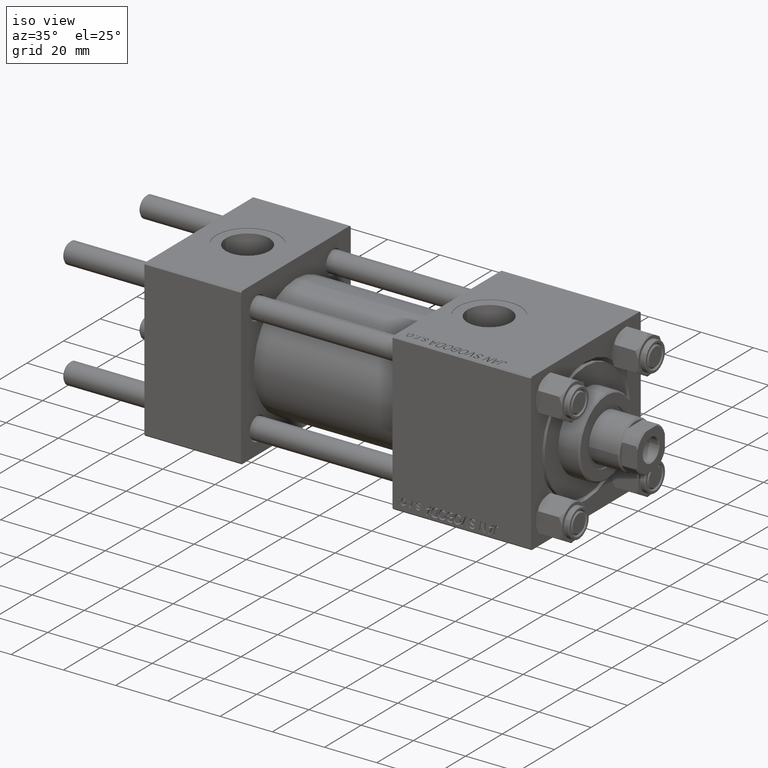
[diagram: clean part render]
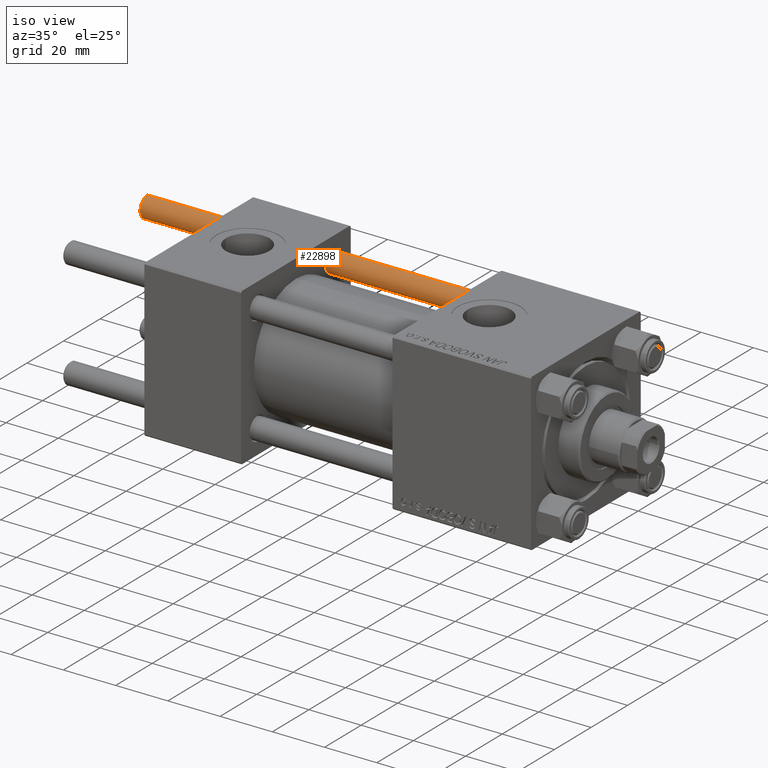
[diagram: same view with one face highlighted and labeled with its STEP entity id]
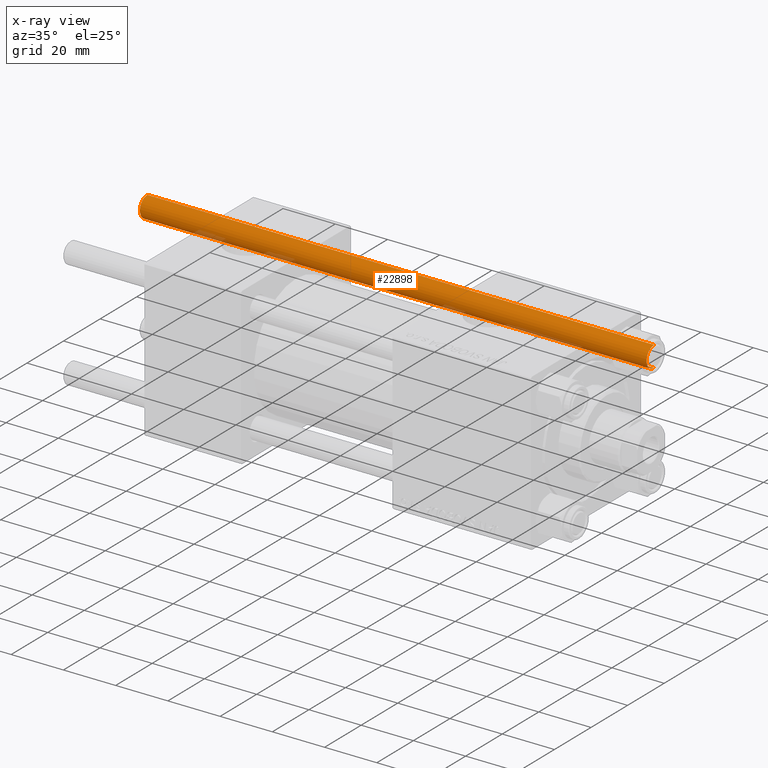
[diagram: x-ray of the same camera — body ghosted, the highlighted face saturated]
A machine part, iso view. The second image highlights one B-rep face of the part: STEP entity #22898.
The next image is the same camera in x-ray: the body ghosted, the highlighted face saturated — about 4% of this face is hidden behind the body in this view.
In plain terms, the highlighted cylindrical surface (edge-blend (fillet) strip) has radius 4 mm, axis along (-1, -0, -0).
Its self-contained STEP definition (entity closure, byte-faithful):
#341 = DIRECTION ( 'NONE',  ( -0.000000000000000000, -0.000000000000000000, -1.000000000000000000 ) ) ;
#4247 = DIRECTION ( 'NONE',  ( -0.000000000000000000, -0.000000000000000000, -1.000000000000000000 ) ) ;
#5375 = EDGE_CURVE ( 'NONE', #18319, #50360, #31281, .T. ) ;
#5916 = CARTESIAN_POINT ( 'NONE',  ( 0.000000000000000000, 0.000000000000000000, 194.5000000000000568 ) ) ;
#6033 = EDGE_CURVE ( 'NONE', #45623, #50360, #27580, .T. ) ;
#8055 = CARTESIAN_POINT ( 'NONE',  ( -4.000000000000000000, 0.000000000000000000, 194.5000000000000568 ) ) ;
#8470 = EDGE_CURVE ( 'NONE', #21928, #45623, #10314, .T. ) ;
#10314 = LINE ( 'NONE', #20855, #32447 ) ;
#11107 = VECTOR ( 'NONE', #4247, 1000.000000000000000 ) ;
#16541 = CARTESIAN_POINT ( 'NONE',  ( 0.000000000000000000, 0.000000000000000000, 195.0000000000000000 ) ) ;
#16791 = CYLINDRICAL_SURFACE ( 'NONE', #29100, 4.000000000000000000 ) ;
#18319 = VERTEX_POINT ( 'NONE', #23129 ) ;
#19716 = ORIENTED_EDGE ( 'NONE', *, *, #8470, .T. ) ;
#20855 = CARTESIAN_POINT ( 'NONE',  ( -4.000000000000000000, 0.000000000000000000, 195.0000000000000000 ) ) ;
#21928 = VERTEX_POINT ( 'NONE', #8055 ) ;
#22898 = ADVANCED_FACE ( 'NONE', ( #47917 ), #16791, .T. ) ;
#23129 = CARTESIAN_POINT ( 'NONE',  ( 4.000000000000000000, 4.898587196589412829E-16, 194.5000000000000568 ) ) ;
#23970 = CARTESIAN_POINT ( 'NONE',  ( 4.000000000000000000, 4.898587196589412829E-16, 0.5000000000000004441 ) ) ;
#25261 = EDGE_LOOP ( 'NONE', ( #25954, #31246, #19716, #32639 ) ) ;
#25954 = ORIENTED_EDGE ( 'NONE', *, *, #5375, .F. ) ;
#27580 = CIRCLE ( 'NONE', #31687, 4.000000000000000000 ) ;
#29100 = AXIS2_PLACEMENT_3D ( 'NONE', #16541, #341, #36335 ) ;
#31246 = ORIENTED_EDGE ( 'NONE', *, *, #44201, .T. ) ;
#31281 = LINE ( 'NONE', #46955, #11107 ) ;
#31687 = AXIS2_PLACEMENT_3D ( 'NONE', #33083, #48774, #33601 ) ;
#32447 = VECTOR ( 'NONE', #44766, 1000.000000000000000 ) ;
#32639 = ORIENTED_EDGE ( 'NONE', *, *, #6033, .T. ) ;
#33083 = CARTESIAN_POINT ( 'NONE',  ( 0.000000000000000000, 0.000000000000000000, 0.5000000000000004441 ) ) ;
#33601 = DIRECTION ( 'NONE',  ( 1.000000000000000000, 0.000000000000000000, 0.000000000000000000 ) ) ;
#33912 = CARTESIAN_POINT ( 'NONE',  ( -4.000000000000000000, 0.000000000000000000, 0.5000000000000004441 ) ) ;
#34393 = AXIS2_PLACEMENT_3D ( 'NONE', #5916, #44744, #36786 ) ;
#36012 = CIRCLE ( 'NONE', #34393, 4.000000000000000000 ) ;
#36335 = DIRECTION ( 'NONE',  ( -1.000000000000000000, 0.000000000000000000, 0.000000000000000000 ) ) ;
#36786 = DIRECTION ( 'NONE',  ( 1.000000000000000000, 0.000000000000000000, 0.000000000000000000 ) ) ;
#44201 = EDGE_CURVE ( 'NONE', #18319, #21928, #36012, .T. ) ;
#44744 = DIRECTION ( 'NONE',  ( 0.000000000000000000, 0.000000000000000000, -1.000000000000000000 ) ) ;
#44766 = DIRECTION ( 'NONE',  ( -0.000000000000000000, -0.000000000000000000, -1.000000000000000000 ) ) ;
#45623 = VERTEX_POINT ( 'NONE', #33912 ) ;
#46955 = CARTESIAN_POINT ( 'NONE',  ( 4.000000000000000000, 4.898587196589412829E-16, 195.0000000000000000 ) ) ;
#47917 = FACE_OUTER_BOUND ( 'NONE', #25261, .T. ) ;
#48774 = DIRECTION ( 'NONE',  ( -0.000000000000000000, -0.000000000000000000, 1.000000000000000000 ) ) ;
#50360 = VERTEX_POINT ( 'NONE', #23970 ) ;